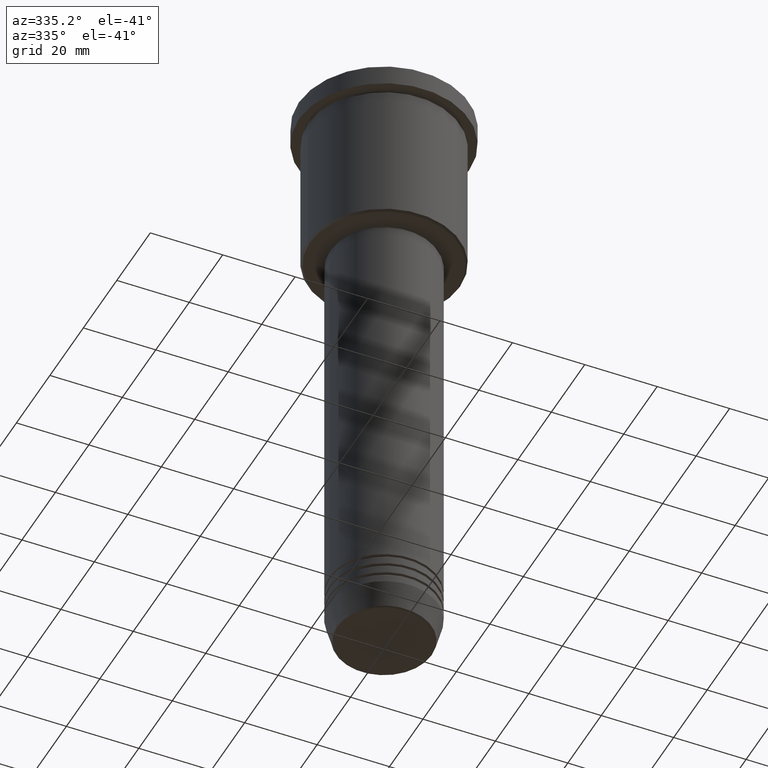
[diagram: clean part render]
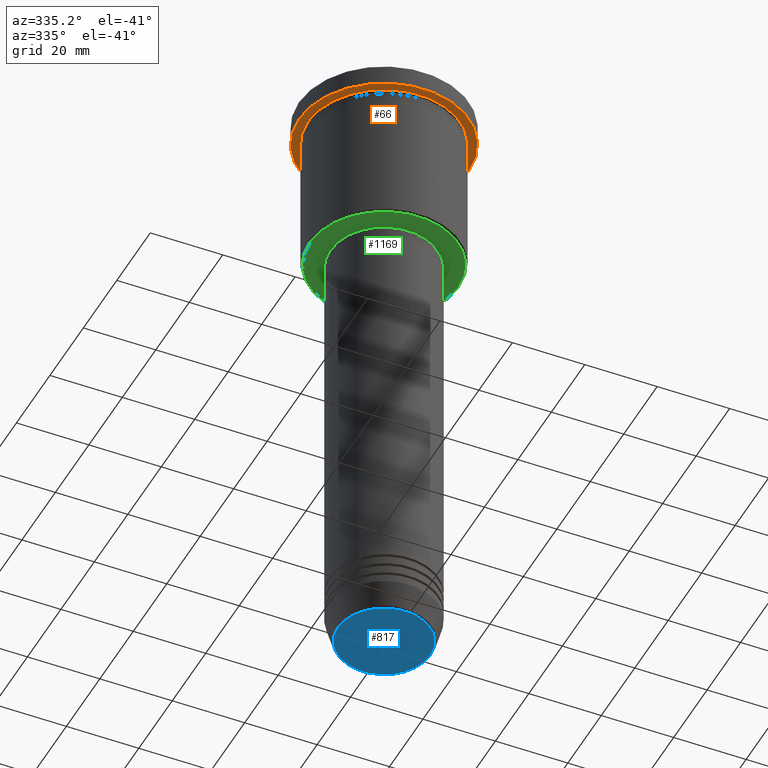
[diagram: same view with three faces highlighted in distinct colors, each labeled with its STEP entity id]
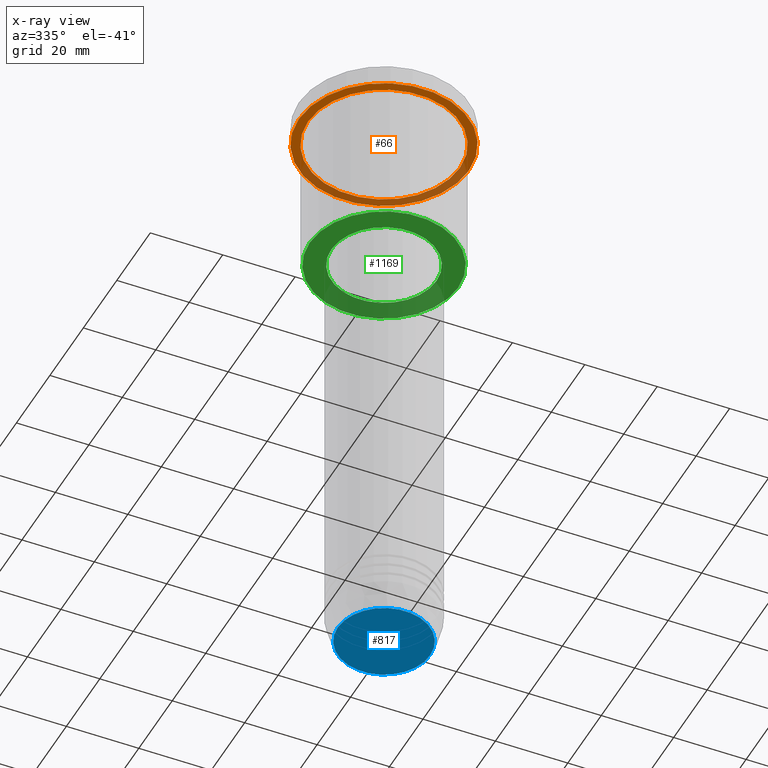
[diagram: x-ray of the same camera — body ghosted, the three highlighted faces saturated]
A machine part, auxiliary view with three faces highlighted in distinct colors.
The next image is the same camera in x-ray (body ghosted, the three faces saturated) — at least one of them is partly hidden behind the body in this view.
Their STEP definitions:

[orange] entity #66 — the highlighted planar face has unit normal (0, 0, -1).
#22 = DIRECTION ( 'NONE',  ( -1.000000000000000000, 0.000000000000000000, 0.000000000000000000 ) ) ;
#38 = AXIS2_PLACEMENT_3D ( 'NONE', #471, #838, #22 ) ;
#50 = EDGE_CURVE ( 'NONE', #841, #1144, #939, .T. ) ;
#66 = ADVANCED_FACE ( 'NONE', ( #1011, #715 ), #1106, .T. ) ;
#127 = AXIS2_PLACEMENT_3D ( 'NONE', #305, #676, #649 ) ;
#133 = EDGE_CURVE ( 'NONE', #1144, #841, #826, .T. ) ;
#178 = EDGE_CURVE ( 'NONE', #691, #783, #979, .T. ) ;
#286 = DIRECTION ( 'NONE',  ( 1.000000000000000000, 0.000000000000000000, 0.000000000000000000 ) ) ;
#290 = ORIENTED_EDGE ( 'NONE', *, *, #133, .T. ) ;
#305 = CARTESIAN_POINT ( 'NONE',  ( 0.000000000000000000, 0.000000000000000000, -5.999999999999994671 ) ) ;
#377 = CARTESIAN_POINT ( 'NONE',  ( -23.50000000000000000, 2.877919977996280320E-15, -5.999999999999994671 ) ) ;
#384 = AXIS2_PLACEMENT_3D ( 'NONE', #667, #1126, #387 ) ;
#387 = DIRECTION ( 'NONE',  ( 1.000000000000000000, 0.000000000000000000, 0.000000000000000000 ) ) ;
#411 = EDGE_CURVE ( 'NONE', #783, #691, #443, .T. ) ;
#443 = CIRCLE ( 'NONE', #384, 23.50000000000000000 ) ;
#471 = CARTESIAN_POINT ( 'NONE',  ( 0.000000000000000000, 0.000000000000000000, -5.999999999999994671 ) ) ;
#491 = DIRECTION ( 'NONE',  ( -0.000000000000000000, -0.000000000000000000, 1.000000000000000000 ) ) ;
#590 = ORIENTED_EDGE ( 'NONE', *, *, #411, .F. ) ;
#649 = DIRECTION ( 'NONE',  ( -1.000000000000000000, 0.000000000000000000, 0.000000000000000000 ) ) ;
#667 = CARTESIAN_POINT ( 'NONE',  ( 0.000000000000000000, 0.000000000000000000, -5.999999999999994671 ) ) ;
#676 = DIRECTION ( 'NONE',  ( -0.000000000000000000, -0.000000000000000000, 1.000000000000000000 ) ) ;
#691 = VERTEX_POINT ( 'NONE', #951 ) ;
#715 = FACE_OUTER_BOUND ( 'NONE', #929, .T. ) ;
#776 = ORIENTED_EDGE ( 'NONE', *, *, #178, .F. ) ;
#783 = VERTEX_POINT ( 'NONE', #377 ) ;
#826 = CIRCLE ( 'NONE', #38, 21.00000000000000000 ) ;
#838 = DIRECTION ( 'NONE',  ( -0.000000000000000000, -0.000000000000000000, 1.000000000000000000 ) ) ;
#841 = VERTEX_POINT ( 'NONE', #1124 ) ;
#929 = EDGE_LOOP ( 'NONE', ( #776, #590 ) ) ;
#939 = CIRCLE ( 'NONE', #127, 21.00000000000000000 ) ;
#951 = CARTESIAN_POINT ( 'NONE',  ( 23.50000000000000000, 0.000000000000000000, -5.999999999999994671 ) ) ;
#974 = EDGE_LOOP ( 'NONE', ( #290, #1000 ) ) ;
#979 = CIRCLE ( 'NONE', #1133, 23.50000000000000000 ) ;
#1000 = ORIENTED_EDGE ( 'NONE', *, *, #50, .T. ) ;
#1011 = FACE_BOUND ( 'NONE', #974, .T. ) ;
#1020 = DIRECTION ( 'NONE',  ( -1.000000000000000000, 0.000000000000000000, -0.000000000000000000 ) ) ;
#1036 = CARTESIAN_POINT ( 'NONE',  ( -21.00000000000000000, 0.000000000000000000, -5.999999999999994671 ) ) ;
#1079 = DIRECTION ( 'NONE',  ( 0.000000000000000000, 0.000000000000000000, -1.000000000000000000 ) ) ;
#1088 = CARTESIAN_POINT ( 'NONE',  ( 0.000000000000000000, 23.50000000000000000, -5.999999999999994671 ) ) ;
#1106 = PLANE ( 'NONE',  #1148 ) ;
#1124 = CARTESIAN_POINT ( 'NONE',  ( 21.00000000000000000, 2.571758278209441661E-15, -5.999999999999994671 ) ) ;
#1126 = DIRECTION ( 'NONE',  ( -0.000000000000000000, -0.000000000000000000, 1.000000000000000000 ) ) ;
#1129 = CARTESIAN_POINT ( 'NONE',  ( 0.000000000000000000, 0.000000000000000000, -5.999999999999994671 ) ) ;
#1133 = AXIS2_PLACEMENT_3D ( 'NONE', #1129, #491, #286 ) ;
#1144 = VERTEX_POINT ( 'NONE', #1036 ) ;
#1148 = AXIS2_PLACEMENT_3D ( 'NONE', #1088, #1079, #1020 ) ;

[blue] entity #817 — the highlighted planar face has unit normal (0, -0, 1).
#32 = DIRECTION ( 'NONE',  ( 0.000000000000000000, 0.000000000000000000, -1.000000000000000000 ) ) ;
#57 = ORIENTED_EDGE ( 'NONE', *, *, #954, .T. ) ;
#107 = PLANE ( 'NONE',  #446 ) ;
#179 = ORIENTED_EDGE ( 'NONE', *, *, #800, .T. ) ;
#180 = CARTESIAN_POINT ( 'NONE',  ( 0.000000000000000000, 0.000000000000000000, -170.9999999999999716 ) ) ;
#204 = CIRCLE ( 'NONE', #558, 12.74069215899266538 ) ;
#209 = DIRECTION ( 'NONE',  ( 1.000000000000000000, 0.000000000000000000, 0.000000000000000000 ) ) ;
#255 = DIRECTION ( 'NONE',  ( 0.000000000000000000, 0.000000000000000000, -1.000000000000000000 ) ) ;
#293 = FACE_OUTER_BOUND ( 'NONE', #455, .T. ) ;
#446 = AXIS2_PLACEMENT_3D ( 'NONE', #664, #1044, #209 ) ;
#455 = EDGE_LOOP ( 'NONE', ( #179, #57 ) ) ;
#486 = CARTESIAN_POINT ( 'NONE',  ( 0.000000000000000000, 0.000000000000000000, -170.9999999999999716 ) ) ;
#534 = VERTEX_POINT ( 'NONE', #619 ) ;
#544 = DIRECTION ( 'NONE',  ( 1.000000000000000000, 0.000000000000000000, 0.000000000000000000 ) ) ;
#558 = AXIS2_PLACEMENT_3D ( 'NONE', #486, #32, #762 ) ;
#617 = CIRCLE ( 'NONE', #908, 12.74069215899266538 ) ;
#619 = CARTESIAN_POINT ( 'NONE',  ( 12.74069215899266538, 0.000000000000000000, -170.9999999999999716 ) ) ;
#664 = CARTESIAN_POINT ( 'NONE',  ( 0.000000000000000000, 0.000000000000000000, -170.9999999999999716 ) ) ;
#732 = VERTEX_POINT ( 'NONE', #1122 ) ;
#762 = DIRECTION ( 'NONE',  ( 1.000000000000000000, 0.000000000000000000, 0.000000000000000000 ) ) ;
#800 = EDGE_CURVE ( 'NONE', #534, #732, #204, .T. ) ;
#817 = ADVANCED_FACE ( 'NONE', ( #293 ), #107, .F. ) ;
#908 = AXIS2_PLACEMENT_3D ( 'NONE', #180, #255, #544 ) ;
#954 = EDGE_CURVE ( 'NONE', #732, #534, #617, .T. ) ;
#1044 = DIRECTION ( 'NONE',  ( 0.000000000000000000, -0.000000000000000000, 1.000000000000000000 ) ) ;
#1122 = CARTESIAN_POINT ( 'NONE',  ( -12.74069215899266538, 1.589857736427681824E-15, -170.9999999999999716 ) ) ;

[green] entity #1169 — the highlighted planar face has unit normal (0, 0, -1).
#9 = CIRCLE ( 'NONE', #406, 20.49999999999998934 ) ;
#19 = DIRECTION ( 'NONE',  ( 0.000000000000000000, 0.000000000000000000, -1.000000000000000000 ) ) ;
#211 = VERTEX_POINT ( 'NONE', #793 ) ;
#226 = EDGE_CURVE ( 'NONE', #1125, #236, #1015, .T. ) ;
#236 = VERTEX_POINT ( 'NONE', #892 ) ;
#238 = CARTESIAN_POINT ( 'NONE',  ( 0.000000000000000000, 0.000000000000000000, -46.00000000000000000 ) ) ;
#241 = CIRCLE ( 'NONE', #1080, 14.49999999999999822 ) ;
#277 = CARTESIAN_POINT ( 'NONE',  ( 0.000000000000000000, 0.000000000000000000, -46.00000000000000000 ) ) ;
#287 = EDGE_CURVE ( 'NONE', #211, #512, #569, .T. ) ;
#301 = AXIS2_PLACEMENT_3D ( 'NONE', #836, #19, #740 ) ;
#329 = EDGE_CURVE ( 'NONE', #236, #1125, #241, .T. ) ;
#336 = DIRECTION ( 'NONE',  ( 1.000000000000000000, 0.000000000000000000, 0.000000000000000000 ) ) ;
#386 = EDGE_LOOP ( 'NONE', ( #1182, #850 ) ) ;
#389 = EDGE_CURVE ( 'NONE', #512, #211, #9, .T. ) ;
#406 = AXIS2_PLACEMENT_3D ( 'NONE', #277, #655, #1047 ) ;
#512 = VERTEX_POINT ( 'NONE', #714 ) ;
#565 = CARTESIAN_POINT ( 'NONE',  ( -14.49999999999999822, 1.775737858763662015E-15, -46.00000000000000000 ) ) ;
#569 = CIRCLE ( 'NONE', #1151, 20.49999999999998934 ) ;
#604 = DIRECTION ( 'NONE',  ( -0.000000000000000000, -0.000000000000000000, 1.000000000000000000 ) ) ;
#612 = DIRECTION ( 'NONE',  ( -0.000000000000000000, -0.000000000000000000, 1.000000000000000000 ) ) ;
#655 = DIRECTION ( 'NONE',  ( 0.000000000000000000, 0.000000000000000000, -1.000000000000000000 ) ) ;
#659 = PLANE ( 'NONE',  #301 ) ;
#712 = DIRECTION ( 'NONE',  ( 0.000000000000000000, 0.000000000000000000, -1.000000000000000000 ) ) ;
#714 = CARTESIAN_POINT ( 'NONE',  ( -20.49999999999998934, 2.541142108230757480E-15, -46.00000000000000000 ) ) ;
#719 = DIRECTION ( 'NONE',  ( -1.000000000000000000, 0.000000000000000000, 0.000000000000000000 ) ) ;
#740 = DIRECTION ( 'NONE',  ( -1.000000000000000000, 0.000000000000000000, -0.000000000000000000 ) ) ;
#742 = DIRECTION ( 'NONE',  ( 1.000000000000000000, 0.000000000000000000, 0.000000000000000000 ) ) ;
#790 = EDGE_LOOP ( 'NONE', ( #953, #1176 ) ) ;
#793 = CARTESIAN_POINT ( 'NONE',  ( 20.49999999999998934, 0.000000000000000000, -46.00000000000000000 ) ) ;
#832 = FACE_BOUND ( 'NONE', #790, .T. ) ;
#836 = CARTESIAN_POINT ( 'NONE',  ( 0.000000000000000000, 21.00000000000000000, -46.00000000000000000 ) ) ;
#848 = FACE_OUTER_BOUND ( 'NONE', #386, .T. ) ;
#850 = ORIENTED_EDGE ( 'NONE', *, *, #389, .T. ) ;
#892 = CARTESIAN_POINT ( 'NONE',  ( 14.49999999999999822, 0.000000000000000000, -46.00000000000000000 ) ) ;
#953 = ORIENTED_EDGE ( 'NONE', *, *, #329, .T. ) ;
#985 = CARTESIAN_POINT ( 'NONE',  ( 0.000000000000000000, 0.000000000000000000, -46.00000000000000000 ) ) ;
#1015 = CIRCLE ( 'NONE', #1134, 14.49999999999999822 ) ;
#1047 = DIRECTION ( 'NONE',  ( -1.000000000000000000, 0.000000000000000000, 0.000000000000000000 ) ) ;
#1067 = CARTESIAN_POINT ( 'NONE',  ( 0.000000000000000000, 0.000000000000000000, -46.00000000000000000 ) ) ;
#1080 = AXIS2_PLACEMENT_3D ( 'NONE', #238, #612, #742 ) ;
#1125 = VERTEX_POINT ( 'NONE', #565 ) ;
#1134 = AXIS2_PLACEMENT_3D ( 'NONE', #1067, #604, #336 ) ;
#1151 = AXIS2_PLACEMENT_3D ( 'NONE', #985, #712, #719 ) ;
#1169 = ADVANCED_FACE ( 'NONE', ( #848, #832 ), #659, .T. ) ;
#1176 = ORIENTED_EDGE ( 'NONE', *, *, #226, .T. ) ;
#1182 = ORIENTED_EDGE ( 'NONE', *, *, #287, .T. ) ;